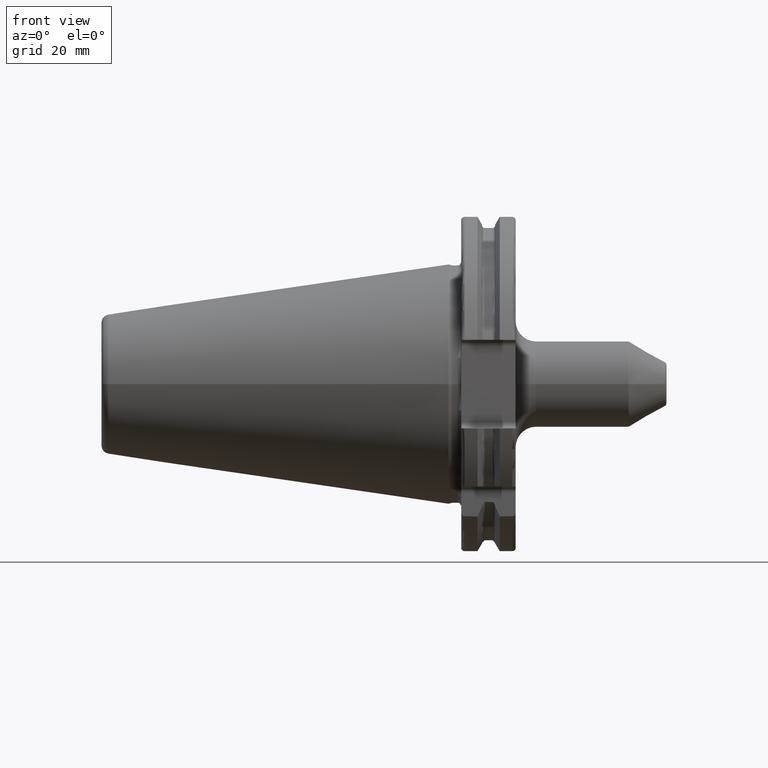
[diagram: clean part render]
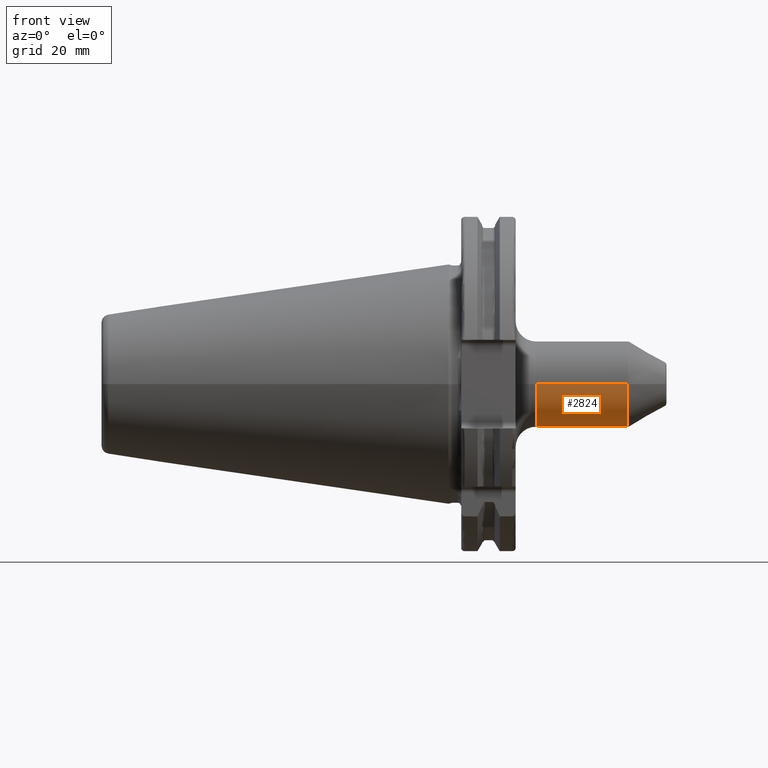
[diagram: same view with one face highlighted and labeled with its STEP entity id]
A machine part, front view. The second image highlights one B-rep face of the part: STEP entity #2824.
In plain terms, the highlighted cylindrical surface (partial cylindrical patch) has radius 12.5 mm, axis along (1, 0, 0).
Its self-contained STEP definition (entity closure, byte-faithful):
#1116=CARTESIAN_POINT('',(4.25E1,1.25E1,0.E0));
#1117=CARTESIAN_POINT('',(4.25E1,1.25E1,-1.632326569299E-1));
#1118=CARTESIAN_POINT('',(4.253126196552E1,1.249369039417E1,
-4.832850963867E-1));
#1119=CARTESIAN_POINT('',(4.267140785685E1,1.246642376994E1,
-9.525767747793E-1));
#1120=CARTESIAN_POINT('',(4.289878008407E1,1.242546942998E1,-1.383156610163E0));
#1121=CARTESIAN_POINT('',(4.320334808998E1,1.237701359005E1,-1.760765474730E0));
#1122=CARTESIAN_POINT('',(4.357519470628E1,1.232790969029E1,-2.073281356473E0));
#1123=CARTESIAN_POINT('',(4.400285042109E1,1.228520407098E1,-2.310111931479E0));
#1124=CARTESIAN_POINT('',(4.447731517161E1,1.225533486038E1,-2.461714796468E0));
#1125=CARTESIAN_POINT('',(4.497477550713E1,1.224406134532E1,-2.516424026587E0));
#1126=CARTESIAN_POINT('',(4.547158393693E1,1.225326924212E1,-2.471818955603E0));
#1127=CARTESIAN_POINT('',(4.594806737325E1,1.228122911821E1,-2.330902807173E0));
#1128=CARTESIAN_POINT('',(4.638721414650E1,1.232347345735E1,-2.099368671621E0));
#1129=CARTESIAN_POINT('',(4.677170505145E1,1.237330655372E1,-1.786804258257E0));
#1130=CARTESIAN_POINT('',(4.708739910346E1,1.242307320350E1,-1.404992739877E0));
#1131=CARTESIAN_POINT('',(4.732229013357E1,1.246521957238E1,
-9.692040158132E-1));
#1132=CARTESIAN_POINT('',(4.746751633328E1,1.249344107649E1,
-4.924063391231E-1));
#1133=CARTESIAN_POINT('',(4.75E1,1.25E1,-1.664532964340E-1));
#1134=CARTESIAN_POINT('',(4.75E1,1.25E1,0.E0));
#1136=DIRECTION('',(-1.E0,0.E0,1.485816007001E-13));
#1137=VECTOR('',#1136,1.745E1);
#1138=CARTESIAN_POINT('',(4.25E1,1.25E1,0.E0));
#1139=LINE('',#1138,#1137);
#1140=CARTESIAN_POINT('',(2.505E1,0.E0,0.E0));
#1141=DIRECTION('',(1.E0,0.E0,0.E0));
#1142=DIRECTION('',(0.E0,-1.E0,0.E0));
#1143=AXIS2_PLACEMENT_3D('',#1140,#1141,#1142);
#1145=DIRECTION('',(-1.E0,0.E0,-3.934573834513E-14));
#1146=VECTOR('',#1145,2.668205080757E1);
#1147=CARTESIAN_POINT('',(5.173205080757E1,-1.25E1,-1.545518808385E-12));
#1148=LINE('',#1147,#1146);
#1149=CARTESIAN_POINT('',(5.173205080757E1,0.E0,0.E0));
#1150=DIRECTION('',(-1.E0,0.E0,0.E0));
#1151=DIRECTION('',(0.E0,1.E0,0.E0));
#1152=AXIS2_PLACEMENT_3D('',#1149,#1150,#1151);
#1154=DIRECTION('',(-1.E0,0.E0,-3.649212640127E-13));
#1155=VECTOR('',#1154,4.232050807569E0);
#1156=CARTESIAN_POINT('',(5.173205080757E1,1.25E1,1.545134203760E-12));
#1157=LINE('',#1156,#1155);
#1604=CARTESIAN_POINT('',(4.75E1,1.25E1,0.E0));
#1606=VERTEX_POINT('',#1604);
#1608=CARTESIAN_POINT('',(4.25E1,1.25E1,0.E0));
#1610=VERTEX_POINT('',#1608);
#1617=CARTESIAN_POINT('',(2.505E1,-1.25E1,0.E0));
#1618=CARTESIAN_POINT('',(2.505E1,1.25E1,0.E0));
#1619=VERTEX_POINT('',#1617);
#1620=VERTEX_POINT('',#1618);
#1621=CARTESIAN_POINT('',(5.173205080757E1,1.25E1,0.E0));
#1622=CARTESIAN_POINT('',(5.173205080757E1,-1.25E1,0.E0));
#1623=VERTEX_POINT('',#1621);
#1624=VERTEX_POINT('',#1622);
#2811=CARTESIAN_POINT('',(1.68525E1,0.E0,0.E0));
#2812=DIRECTION('',(1.E0,0.E0,0.E0));
#2813=DIRECTION('',(0.E0,-1.E0,0.E0));
#2814=AXIS2_PLACEMENT_3D('',#2811,#2812,#2813);
#2815=CYLINDRICAL_SURFACE('',#2814,1.25E1);
#2816=ORIENTED_EDGE('',*,*,#2700,.F.);
#2817=ORIENTED_EDGE('',*,*,#2671,.T.);
#2818=ORIENTED_EDGE('',*,*,#2637,.F.);
#2819=ORIENTED_EDGE('',*,*,#2668,.F.);
#2820=ORIENTED_EDGE('',*,*,#2801,.F.);
#2821=ORIENTED_EDGE('',*,*,#2664,.T.);
#2822=EDGE_LOOP('',(#2816,#2817,#2818,#2819,#2820,#2821));
#2823=FACE_OUTER_BOUND('',#2822,.F.);
#2824=ADVANCED_FACE('',(#2823),#2815,.T.);
#1135=B_SPLINE_CURVE_WITH_KNOTS('',3,(#1116,#1117,#1118,#1119,#1120,#1121,#1122,
#1123,#1124,#1125,#1126,#1127,#1128,#1129,#1130,#1131,#1132,#1133,#1134),
.UNSPECIFIED.,.F.,.F.,(4,1,1,1,1,1,1,1,1,1,1,1,1,1,1,1,4),(0.E0,6.25E-2,1.25E-1,
1.875E-1,2.5E-1,3.125E-1,3.75E-1,4.375E-1,5.E-1,5.625E-1,6.25E-1,6.875E-1,
7.5E-1,8.125E-1,8.75E-1,9.375E-1,1.E0),.UNSPECIFIED.);
#1144=CIRCLE('',#1143,1.25E1);
#1153=CIRCLE('',#1152,1.25E1);
#2637=EDGE_CURVE('',#1619,#1620,#1144,.T.);
#2664=EDGE_CURVE('',#1623,#1606,#1157,.T.);
#2668=EDGE_CURVE('',#1624,#1619,#1148,.T.);
#2671=EDGE_CURVE('',#1610,#1620,#1139,.T.);
#2700=EDGE_CURVE('',#1610,#1606,#1135,.T.);
#2801=EDGE_CURVE('',#1623,#1624,#1153,.T.);